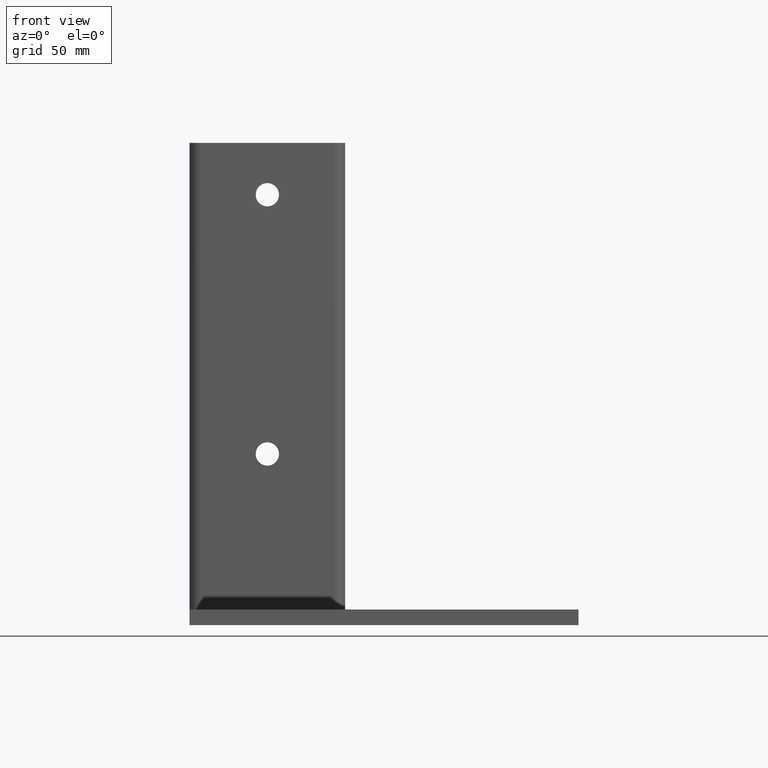
[diagram: clean part render]
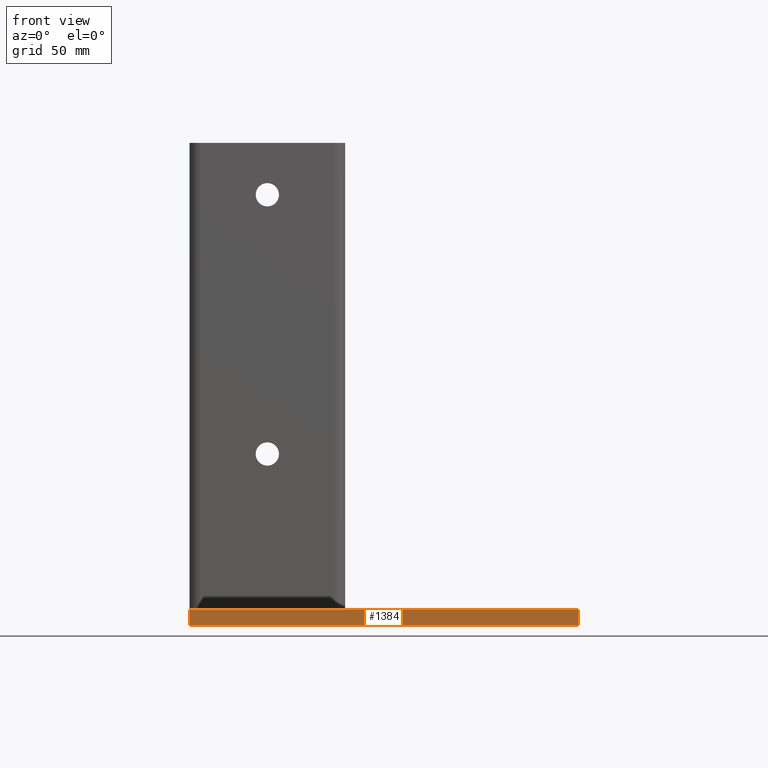
[diagram: same view with one face highlighted and labeled with its STEP entity id]
A machine part, front view. The second image highlights one B-rep face of the part: STEP entity #1384.
In plain terms, the highlighted planar face has unit normal (0, -1, 0).
Its self-contained STEP definition (entity closure, byte-faithful):
#116 = CARTESIAN_POINT ( 'NONE',  ( 120.0000000000000000, -120.0000000000000000, -3.000000000000000000 ) ) ;
#117 = DIRECTION ( 'NONE',  ( 0.0000000000000000000, 0.0000000000000000000, -1.000000000000000000 ) ) ;
#118 = CARTESIAN_POINT ( 'NONE',  ( 45.00000000000000000, -120.0000000000000000, 0.0000000000000000000 ) ) ;
#119 = DIRECTION ( 'NONE',  ( 1.000000000000000000, 0.0000000000000000000, 0.0000000000000000000 ) ) ;
#120 = CARTESIAN_POINT ( 'NONE',  ( -30.00000000000000000, -120.0000000000000000, 87.00000000000000000 ) ) ;
#121 = DIRECTION ( 'NONE',  ( 0.0000000000000000000, 0.0000000000000000000, 1.000000000000000000 ) ) ;
#122 = CARTESIAN_POINT ( 'NONE',  ( 45.00000000000000000, -120.0000000000000000, -6.000000000000000000 ) ) ;
#123 = DIRECTION ( 'NONE',  ( -1.000000000000000000, 0.0000000000000000000, 0.0000000000000000000 ) ) ;
#143 = PLANE ( 'NONE',  #878 ) ;
#144 = CARTESIAN_POINT ( 'NONE',  ( -30.00000000000000000, -120.0000000000000000, 0.0000000000000000000 ) ) ;
#145 = DIRECTION ( 'NONE',  ( 0.0000000000000000000, -1.000000000000000000, 0.0000000000000000000 ) ) ;
#146 = DIRECTION ( 'NONE',  ( 0.0000000000000000000, 0.0000000000000000000, -1.000000000000000000 ) ) ;
#295 = EDGE_CURVE ( 'NONE', #1432, #1419, #1008, .T. ) ;
#296 = EDGE_CURVE ( 'NONE', #1418, #1432, #1011, .T. ) ;
#297 = EDGE_CURVE ( 'NONE', #1420, #1418, #1013, .T. ) ;
#298 = EDGE_CURVE ( 'NONE', #1419, #1420, #1015, .T. ) ;
#572 = ORIENTED_EDGE ( 'NONE', *, *, #297, .F. ) ;
#573 = ORIENTED_EDGE ( 'NONE', *, *, #298, .F. ) ;
#832 = ORIENTED_EDGE ( 'NONE', *, *, #295, .F. ) ;
#839 = ORIENTED_EDGE ( 'NONE', *, *, #296, .F. ) ;
#867 = EDGE_LOOP ( 'NONE', ( #832, #839, #572, #573 ) ) ;
#878 = AXIS2_PLACEMENT_3D ( 'NONE', #144, #145, #146 ) ;
#974 = CARTESIAN_POINT ( 'NONE',  ( -30.00000000000000000, -120.0000000000000000, 3.000001635999893800E-008 ) ) ;
#975 = CARTESIAN_POINT ( 'NONE',  ( 120.0000000000000000, -120.0000000000000000, -6.000000000000000900 ) ) ;
#976 = CARTESIAN_POINT ( 'NONE',  ( -30.00000000000000000, -120.0000000000000000, -5.999999999999987600 ) ) ;
#988 = CARTESIAN_POINT ( 'NONE',  ( 120.0000000000000000, -120.0000000000000000, 0.0000000000000000000 ) ) ;
#1008 = LINE ( 'NONE', #116, #1010 ) ;
#1010 = VECTOR ( 'NONE', #117, 1000.000000000000000 ) ;
#1011 = LINE ( 'NONE', #118, #1012 ) ;
#1012 = VECTOR ( 'NONE', #119, 1000.000000000000000 ) ;
#1013 = LINE ( 'NONE', #120, #1014 ) ;
#1014 = VECTOR ( 'NONE', #121, 1000.000000000000000 ) ;
#1015 = LINE ( 'NONE', #122, #1016 ) ;
#1016 = VECTOR ( 'NONE', #123, 1000.000000000000000 ) ;
#1148 = FACE_OUTER_BOUND ( 'NONE', #867, .T. ) ;
#1384 = ADVANCED_FACE ( 'NONE', ( #1148 ), #143, .T. ) ;
#1418 = VERTEX_POINT ( 'NONE', #974 ) ;
#1419 = VERTEX_POINT ( 'NONE', #975 ) ;
#1420 = VERTEX_POINT ( 'NONE', #976 ) ;
#1432 = VERTEX_POINT ( 'NONE', #988 ) ;